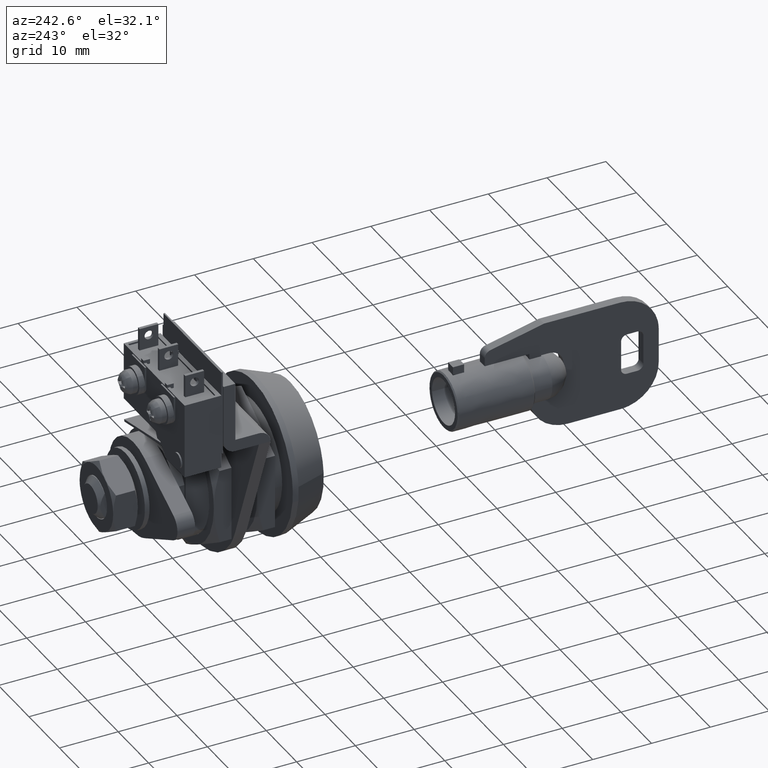
[diagram: clean part render]
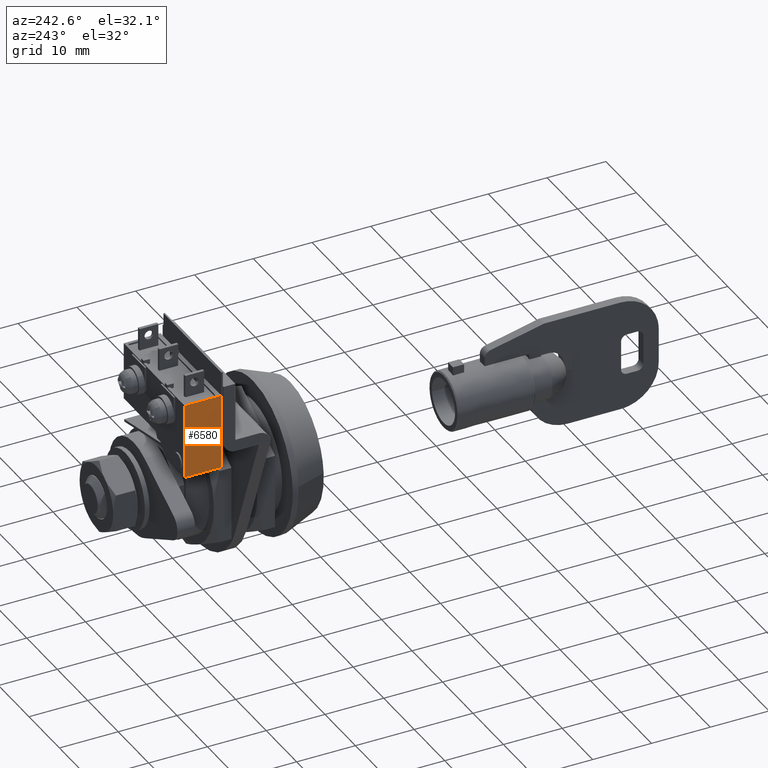
[diagram: same view with one face highlighted and labeled with its STEP entity id]
A machine part, auxiliary view. The second image highlights one B-rep face of the part: STEP entity #6580.
In plain terms, the highlighted face is a freeform B-spline surface patch.
Its self-contained STEP definition (entity closure, byte-faithful):
#6482=CARTESIAN_POINT('',(21.949994000000100,19.750000000000000,25.899993000000102));
#6483=VERTEX_POINT('',#6482);
#6491=CARTESIAN_POINT('',(21.949994000000100,19.750000000000000,13.099990000000000));
#6492=VERTEX_POINT('',#6491);
#6493=CARTESIAN_POINT('',(21.949994000000100,19.750000000000000,13.099990000000000));
#6494=CARTESIAN_POINT('',(21.949994000000100,19.750000000000000,25.899993000000102));
#6495=QUASI_UNIFORM_CURVE('',1,(#6493,#6494),.UNSPECIFIED.,.F.,.U.);
#6496=EDGE_CURVE('',#6492,#6483,#6495,.T.);
#6553=CARTESIAN_POINT('',(21.637805618044140,19.750000000000000,26.539354086299380));
#6554=CARTESIAN_POINT('',(21.637805618044140,19.750000000000000,12.460629485905450));
#6555=CARTESIAN_POINT('',(28.512180761454729,19.750000000000000,26.539354086299380));
#6556=CARTESIAN_POINT('',(28.512180761454729,19.750000000000000,12.460629485905450));
#6557=B_SPLINE_SURFACE_WITH_KNOTS('',1,1,((#6553,#6555),(#6554,#6556)),.UNSPECIFIED.,.F.,.F.,.U.,(2,2),(2,2),(0.0,14.078724600393929),(0.0,6.874375143410592),.UNSPECIFIED.);
#6558=ORIENTED_EDGE('',*,*,#6496,.T.);
#6559=CARTESIAN_POINT('',(28.199994000000050,19.750000000000000,25.899993000000102));
#6560=VERTEX_POINT('',#6559);
#6561=CARTESIAN_POINT('',(28.199994000000050,19.750000000000000,25.899993000000102));
#6562=CARTESIAN_POINT('',(21.949994000000100,19.750000000000000,25.899993000000102));
#6563=QUASI_UNIFORM_CURVE('',1,(#6561,#6562),.UNSPECIFIED.,.F.,.U.);
#6564=EDGE_CURVE('',#6560,#6483,#6563,.T.);
#6565=ORIENTED_EDGE('',*,*,#6564,.F.);
#6566=CARTESIAN_POINT('',(28.199994000000050,19.750000000000000,13.099990000000000));
#6567=VERTEX_POINT('',#6566);
#6568=CARTESIAN_POINT('',(28.199994000000050,19.750000000000000,13.099990000000000));
#6569=CARTESIAN_POINT('',(28.199994000000050,19.750000000000000,25.899993000000102));
#6570=QUASI_UNIFORM_CURVE('',1,(#6568,#6569),.UNSPECIFIED.,.F.,.U.);
#6571=EDGE_CURVE('',#6567,#6560,#6570,.T.);
#6572=ORIENTED_EDGE('',*,*,#6571,.F.);
#6573=CARTESIAN_POINT('',(28.199994000000050,19.750000000000000,13.099990000000000));
#6574=CARTESIAN_POINT('',(21.949994000000100,19.750000000000000,13.099990000000000));
#6575=QUASI_UNIFORM_CURVE('',1,(#6573,#6574),.UNSPECIFIED.,.F.,.U.);
#6576=EDGE_CURVE('',#6567,#6492,#6575,.T.);
#6577=ORIENTED_EDGE('',*,*,#6576,.T.);
#6578=EDGE_LOOP('',(#6558,#6565,#6572,#6577));
#6579=FACE_OUTER_BOUND('',#6578,.T.);
#6580=ADVANCED_FACE('',(#6579),#6557,.F.);